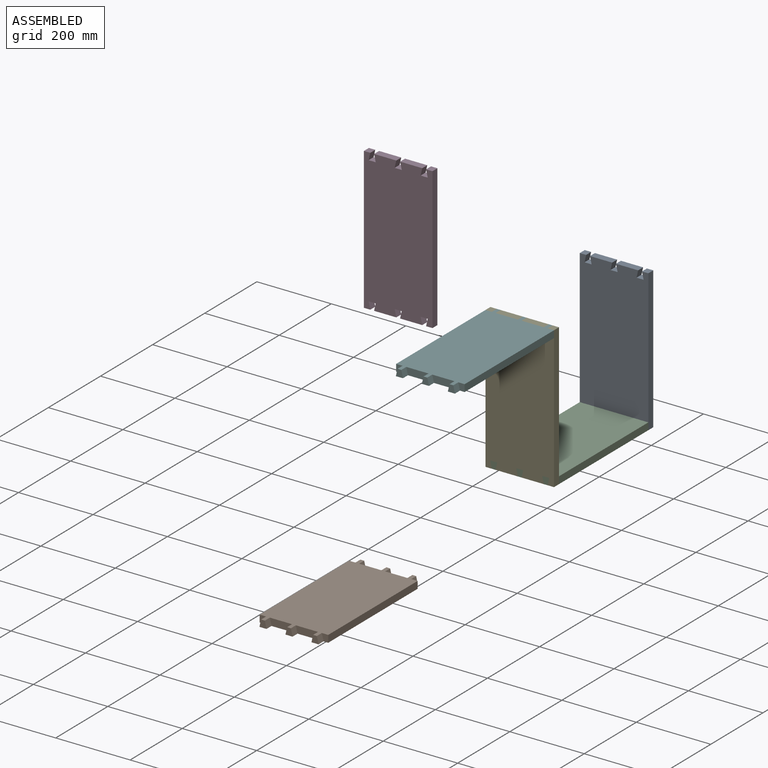
[diagram: assembled view]
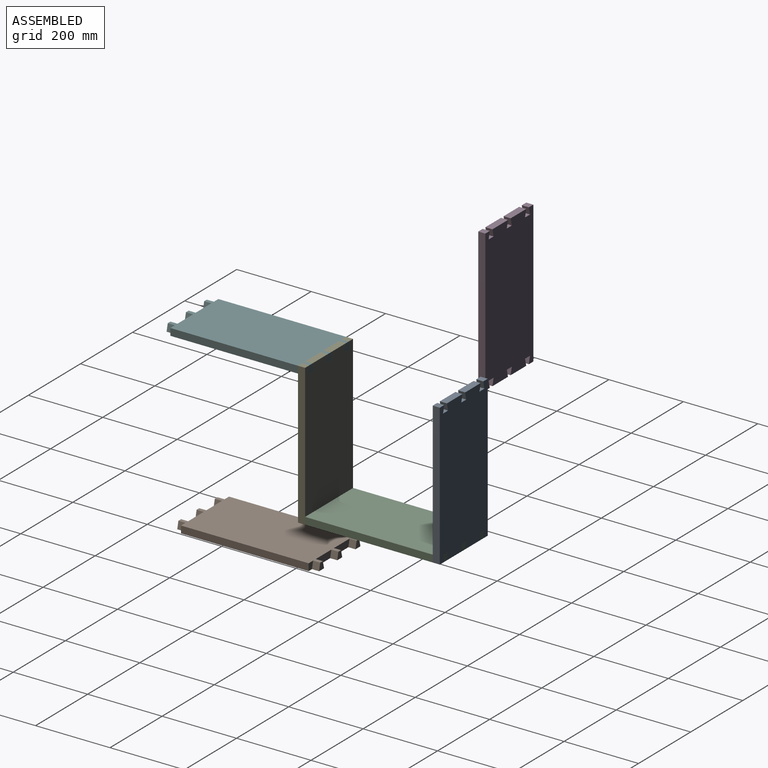
[diagram: assembled view, second angle]
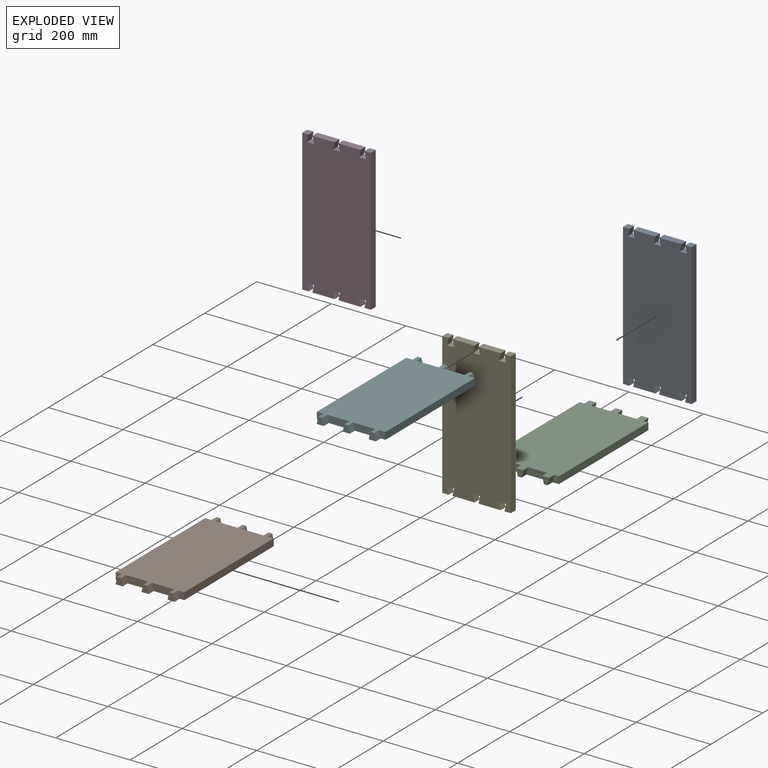
[diagram: exploded view]
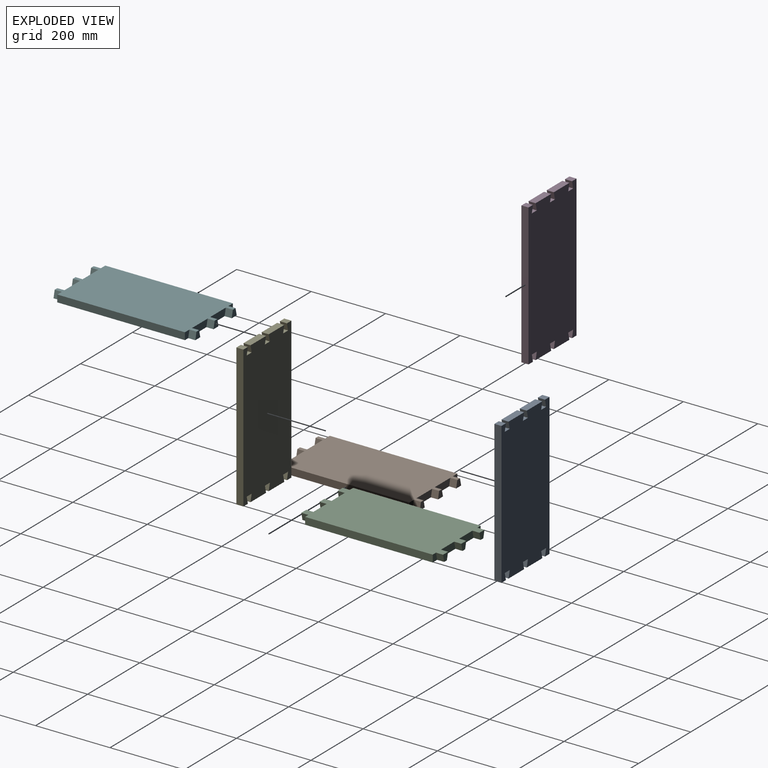
[diagram: exploded view, second angle]
ASSEMBLY  parts=6 mates=3
PART A: 30 faces, bbox 184.2x19.1x381 mm
  f0: plane 59.69x19.05mm, normal (0,0,-1), area 1137.1mm2, adj f3,f4,f25,f29
  f1: plane 59.69x19.05mm, normal (0,0,-1), area 1137.1mm2, adj f3,f4,f22,f26
  f2: plane 19.05x17.15mm, normal (0,0,-1), area 326.6mm2, adj f3,f4,f8,f23
  f3: plane 381x184.15mm, normal (0,-1,0), area 68491.8mm2, adj f0,f1,f2,f5,f6,f7,f8,f9
  f4: plane 381x184.15mm, normal (0,1,0), area 68491.8mm2, adj f0,f1,f2,f5,f6,f7,f8,f9
  f5: plane 59.69x19.05mm, normal (0,0,1), area 1137.1mm2, adj f3,f4,f17,f19
  f6: plane 59.69x19.05mm, normal (0,0,1), area 1137.1mm2, adj f3,f4,f14,f16
  f7: plane 19.05x17.15mm, normal (0,0,1), area 326.6mm2, adj f3,f4,f8,f13
  f8: plane 381x19.05mm, normal (1,0,0), area 7258.1mm2, adj f2,f3,f4,f7
  f9: plane 19.05x17.15mm, normal (0,0,1), area 326.6mm2, adj f3,f4,f10,f20
  f10: plane 381x19.05mm, normal (-1,0,0), area 7258.1mm2, adj f3,f4,f9,f11
  f11: plane 19.05x17.15mm, normal (0,0,-1), area 326.6mm2, adj f3,f4,f10,f28
  f12: plane 19.05x19.05mm, normal (0,0,1), area 362.9mm2, adj f3,f4,f13,f14
  f13: plane 19.05x19.05mm, normal (-0.97,0,-0.23), area 372.7mm2, adj f3,f4,f7,f12
  f14: plane 19.05x19.05mm, normal (0.97,0,-0.23), area 372.7mm2, adj f3,f4,f6,f12
  f15: plane 19.05x19.05mm, normal (0,0,1), area 362.9mm2, adj f3,f4,f16,f17
  f16: plane 19.05x19.05mm, normal (-0.97,0,-0.23), area 372.7mm2, adj f3,f4,f6,f15
  f17: plane 19.05x19.05mm, normal (0.97,0,-0.23), area 372.7mm2, adj f3,f4,f5,f15
  f18: plane 19.05x19.05mm, normal (0,0,1), area 362.9mm2, adj f3,f4,f19,f20
  f19: plane 19.05x19.05mm, normal (-0.97,0,-0.23), area 372.7mm2, adj f3,f4,f5,f18
  f20: plane 19.05x19.05mm, normal (0.97,0,-0.23), area 372.7mm2, adj f3,f4,f9,f18
  f21: plane 19.05x19.05mm, normal (0,0,-1), area 362.9mm2, adj f3,f4,f22,f23
  f22: plane 19.05x19.05mm, normal (0.97,0,0.23), area 372.7mm2, adj f1,f3,f4,f21
  f23: plane 19.05x19.05mm, normal (-0.97,0,0.23), area 372.7mm2, adj f2,f3,f4,f21
  f24: plane 19.05x19.05mm, normal (0,0,-1), area 362.9mm2, adj f3,f4,f25,f26
  f25: plane 19.05x19.05mm, normal (0.97,0,0.23), area 372.7mm2, adj f0,f3,f4,f24
  f26: plane 19.05x19.05mm, normal (-0.97,0,0.23), area 372.7mm2, adj f1,f3,f4,f24
  f27: plane 19.05x19.05mm, normal (0,0,-1), area 362.9mm2, adj f3,f4,f28,f29
  f28: plane 19.05x19.05mm, normal (0.97,0,0.23), area 372.7mm2, adj f3,f4,f11,f27
  f29: plane 19.05x19.05mm, normal (-0.97,0,0.23), area 372.7mm2, adj f0,f3,f4,f27
PART B: 30 faces, bbox 184.2x381x19.1 mm
  f0: plane 342.9x19.05mm, normal (1,0,0), area 6532.2mm2, adj f5,f6,f16,f28
  f1: plane 342.9x19.05mm, normal (-1,0,0), area 6532.2mm2, adj f5,f6,f18,f26
  f2: plane 19.05x19.05mm, normal (0,1,0), area 278.2mm2, adj f5,f6,f22,f29
  f3: plane 19.05x19.05mm, normal (0,1,0), area 278.2mm2, adj f5,f6,f21,f25
  f4: plane 19.05x19.05mm, normal (0,1,0), area 278.2mm2, adj f5,f6,f24,f27
  f5: plane 381x184.15mm, normal (0,0,1), area 65322.4mm2, adj f0,f1,f2,f3,f4,f7,f8,f9
  f6: plane 381x184.15mm, normal (0,0,-1), area 64306.3mm2, adj f0,f1,f2,f3,f4,f7,f8,f9
  f7: plane 19.05x19.05mm, normal (0,-1,0), area 278.2mm2, adj f5,f6,f12,f19
  f8: plane 19.05x19.05mm, normal (0,-1,0), area 278.2mm2, adj f5,f6,f11,f15
  f9: plane 19.05x19.05mm, normal (0,-1,0), area 278.2mm2, adj f5,f6,f14,f17
  f10: plane 59.69x19.05mm, normal (0,-1,0), area 1052.4mm2, adj f5,f6,f11,f12
  f11: plane 19.05x19.05mm, normal (-0.97,0,-0.23), area 372.7mm2, adj f5,f6,f8,f10
  f12: plane 19.05x19.05mm, normal (0.97,0,-0.23), area 372.7mm2, adj f5,f6,f7,f10
  f13: plane 59.69x19.05mm, normal (0,-1,0), area 1052.4mm2, adj f5,f6,f14,f15
  f14: plane 19.05x19.05mm, normal (-0.97,0,-0.23), area 372.7mm2, adj f5,f6,f9,f13
  f15: plane 19.05x19.05mm, normal (0.97,0,-0.23), area 372.7mm2, adj f5,f6,f8,f13
  f16: plane 19.05x17.15mm, normal (0,-1,0), area 284.3mm2, adj f0,f5,f6,f17
  f17: plane 19.05x19.05mm, normal (0.97,0,-0.23), area 372.7mm2, adj f5,f6,f9,f16
  f18: plane 19.05x17.15mm, normal (0,-1,0), area 284.3mm2, adj f1,f5,f6,f19
  f19: plane 19.05x19.05mm, normal (-0.97,0,-0.23), area 372.7mm2, adj f5,f6,f7,f18
  f20: plane 59.69x19.05mm, normal (0,1,0), area 1052.4mm2, adj f5,f6,f21,f22
  f21: plane 19.05x19.05mm, normal (0.97,0,-0.23), area 372.7mm2, adj f3,f5,f6,f20
  f22: plane 19.05x19.05mm, normal (-0.97,0,-0.23), area 372.7mm2, adj f2,f5,f6,f20
  f23: plane 59.69x19.05mm, normal (0,1,0), area 1052.4mm2, adj f5,f6,f24,f25
  f24: plane 19.05x19.05mm, normal (0.97,0,-0.23), area 372.7mm2, adj f4,f5,f6,f23
  f25: plane 19.05x19.05mm, normal (-0.97,0,-0.23), area 372.7mm2, adj f3,f5,f6,f23
  f26: plane 19.05x17.15mm, normal (0,1,0), area 284.3mm2, adj f1,f5,f6,f27
  f27: plane 19.05x19.05mm, normal (-0.97,0,-0.23), area 372.7mm2, adj f4,f5,f6,f26
  f28: plane 19.05x17.15mm, normal (0,1,0), area 284.3mm2, adj f0,f5,f6,f29
  f29: plane 19.05x19.05mm, normal (0.97,0,-0.23), area 372.7mm2, adj f2,f5,f6,f28
PART C: same geometry as B
PART D: same geometry as A
PART E: same geometry as A
PART F: same geometry as B
PLACE A t=(0,180.98,171.45)mm
PLACE B rot(axis=(1,0,0),180deg) t=(-259.41,-333.96,-448.34)mm
PLACE C t=(0,-180.98,171.45)mm fixed
PLACE D t=(-446.71,-9.44,372.7)mm
PLACE E t=(0,-180.98,171.45)mm
PLACE F rot(axis=(1,0,0),180deg) t=(0,-180.98,171.45)mm
MATE fastened E.f3 <-> F.f16  axis (0,-1,0) through (92.08,-190.5,361.95)mm
MATE fastened E.f4 <-> C.f16  axis (0,1,0) through (92.08,-171.45,-19.05)mm
MATE fastened A.f3 <-> C.f28  axis (0,-1,0) through (92.08,171.45,-19.05)mm
